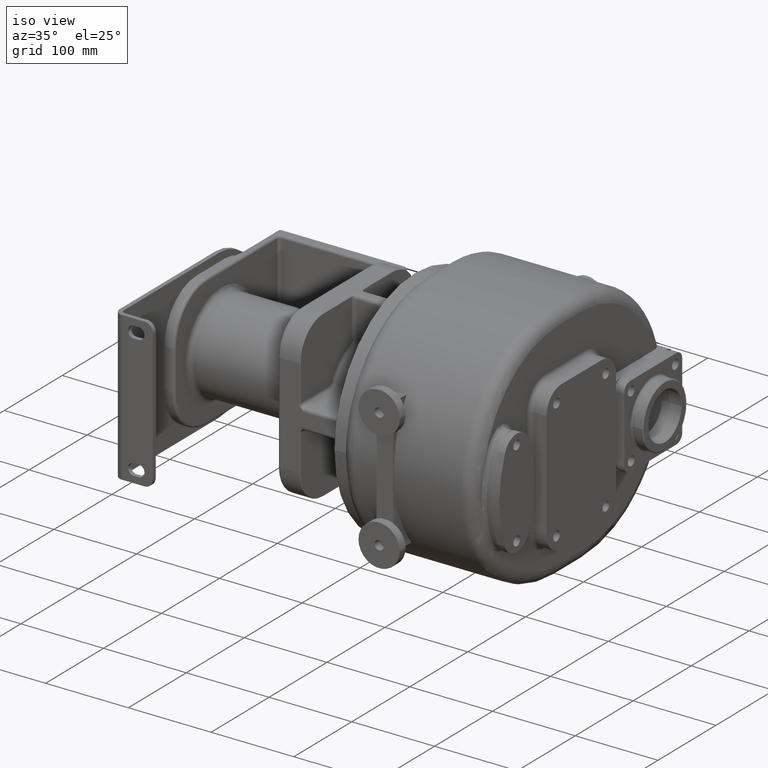
[diagram: clean part render]
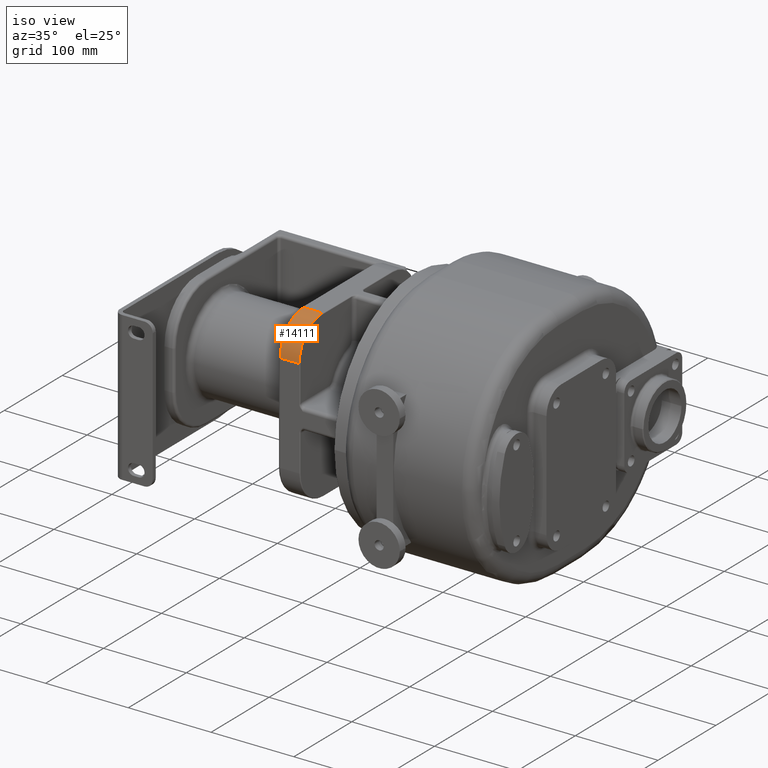
[diagram: same view with one face highlighted and labeled with its STEP entity id]
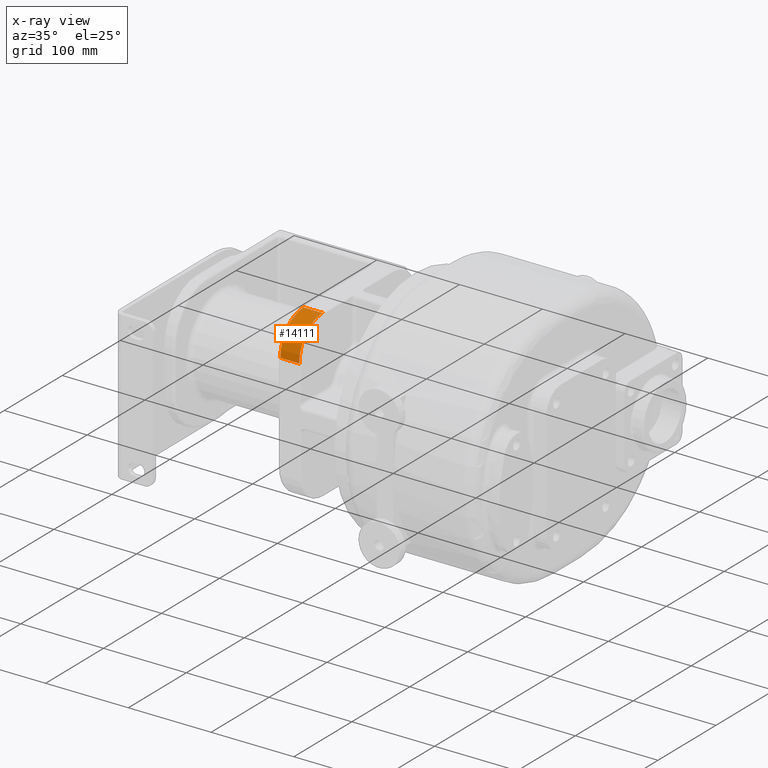
[diagram: x-ray of the same camera — body ghosted, the highlighted face saturated]
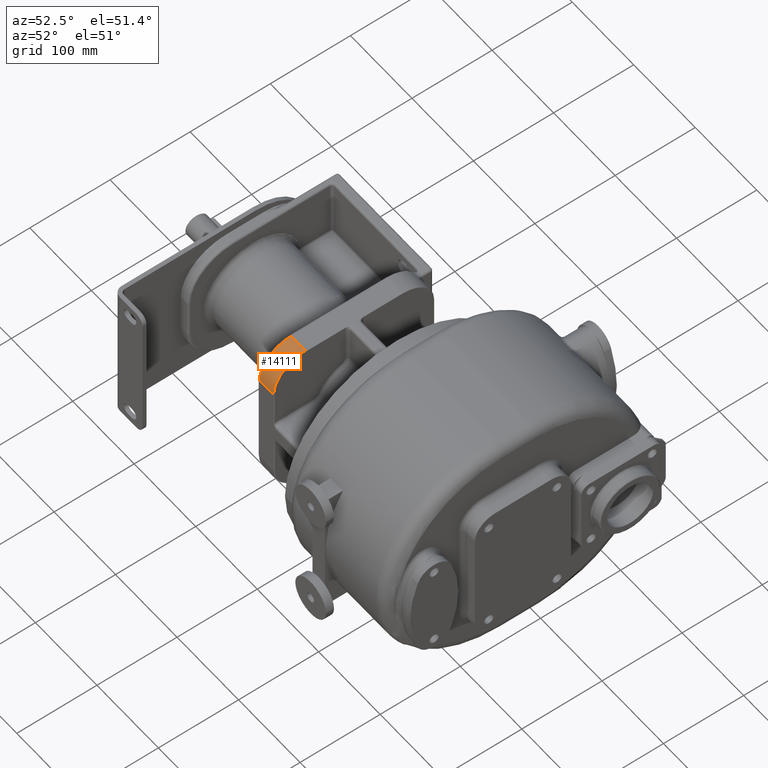
[diagram: same view with one face highlighted and labeled with its STEP entity id]
A machine part, iso view. The second image highlights one B-rep face of the part: STEP entity #14111.
The next image is the same camera in x-ray: the body ghosted, the highlighted face saturated — about 0% of this face is hidden behind the body in this view.
A second angle (auxiliary view) of the same face is appended — the face is thin or edge-on in the first view.
In plain terms, the highlighted cylindrical surface (partial cylindrical patch) has radius 40 mm, axis along (-1, 0, 0).
Its self-contained STEP definition (entity closure, byte-faithful):
#1788=CARTESIAN_POINT('',(-1.615E2,9.E1,6.E1));
#1789=DIRECTION('',(-1.E0,0.E0,0.E0));
#1790=DIRECTION('',(0.E0,-1.E0,0.E0));
#1791=AXIS2_PLACEMENT_3D('',#1788,#1789,#1790);
#1793=DIRECTION('',(1.E0,8.959017103062E-14,0.E0));
#1794=VECTOR('',#1793,2.3E1);
#1795=CARTESIAN_POINT('',(-1.615E2,9.E1,1.E2));
#1796=LINE('',#1795,#1794);
#1797=CARTESIAN_POINT('',(-1.385E2,9.E1,6.E1));
#1798=DIRECTION('',(-1.E0,0.E0,0.E0));
#1799=DIRECTION('',(0.E0,-1.E0,0.E0));
#1800=AXIS2_PLACEMENT_3D('',#1797,#1798,#1799);
#1810=DIRECTION('',(1.E0,0.E0,-1.013295727519E-13));
#1811=VECTOR('',#1810,2.3E1);
#1812=CARTESIAN_POINT('',(-1.615E2,5.E1,6.E1));
#1813=LINE('',#1812,#1811);
#9619=CARTESIAN_POINT('',(-1.385E2,9.E1,1.E2));
#9620=VERTEX_POINT('',#9619);
#9623=CARTESIAN_POINT('',(-1.385E2,5.E1,6.E1));
#9624=VERTEX_POINT('',#9623);
#10237=CARTESIAN_POINT('',(-1.615E2,5.E1,6.E1));
#10238=CARTESIAN_POINT('',(-1.615E2,9.E1,1.E2));
#10239=VERTEX_POINT('',#10237);
#10240=VERTEX_POINT('',#10238);
#14097=CARTESIAN_POINT('',(-1.375E2,9.E1,6.E1));
#14098=DIRECTION('',(-1.E0,0.E0,0.E0));
#14099=DIRECTION('',(0.E0,0.E0,-1.E0));
#14100=AXIS2_PLACEMENT_3D('',#14097,#14098,#14099);
#14101=CYLINDRICAL_SURFACE('',#14100,4.E1);
#14103=ORIENTED_EDGE('',*,*,#14102,.F.);
#14105=ORIENTED_EDGE('',*,*,#14104,.T.);
#14106=ORIENTED_EDGE('',*,*,#14075,.T.);
#14108=ORIENTED_EDGE('',*,*,#14107,.F.);
#14109=EDGE_LOOP('',(#14103,#14105,#14106,#14108));
#14110=FACE_OUTER_BOUND('',#14109,.F.);
#14111=ADVANCED_FACE('',(#14110),#14101,.T.);
#1792=CIRCLE('',#1791,4.E1);
#1801=CIRCLE('',#1800,4.E1);
#14075=EDGE_CURVE('',#10240,#9620,#1796,.T.);
#14102=EDGE_CURVE('',#10239,#9624,#1813,.T.);
#14104=EDGE_CURVE('',#10239,#10240,#1792,.T.);
#14107=EDGE_CURVE('',#9624,#9620,#1801,.T.);